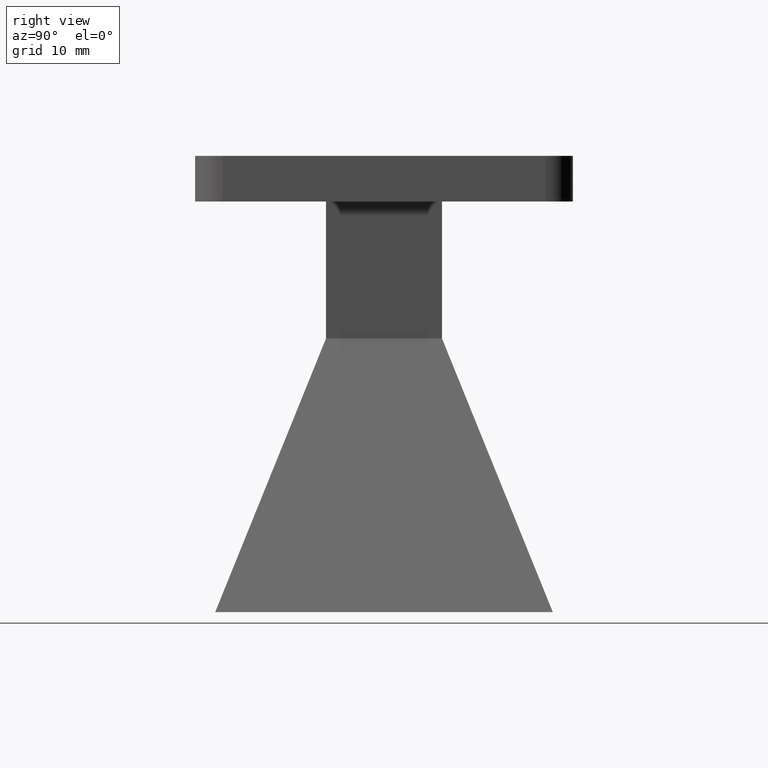
[diagram: clean part render]
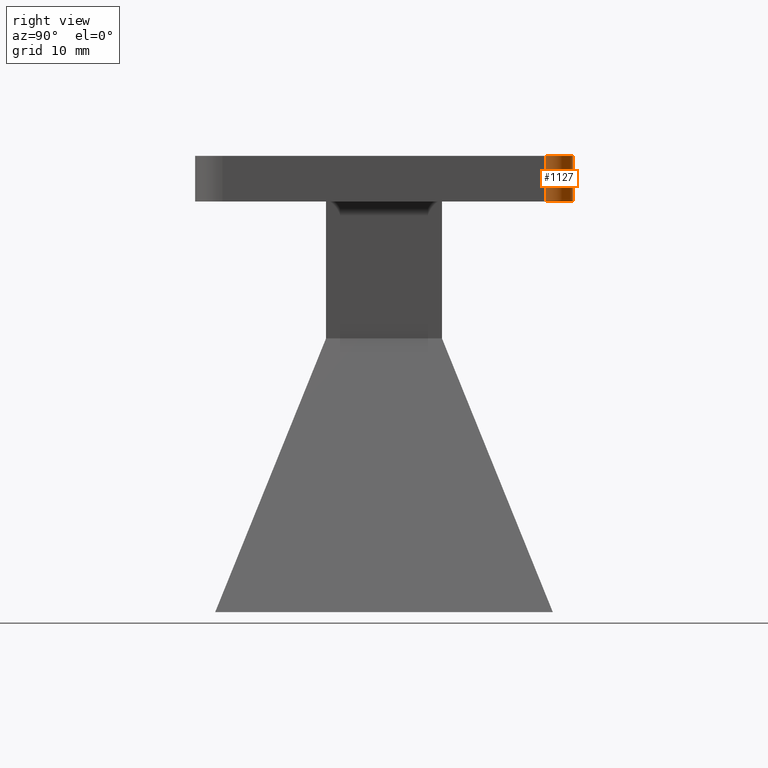
[diagram: same view with one face highlighted and labeled with its STEP entity id]
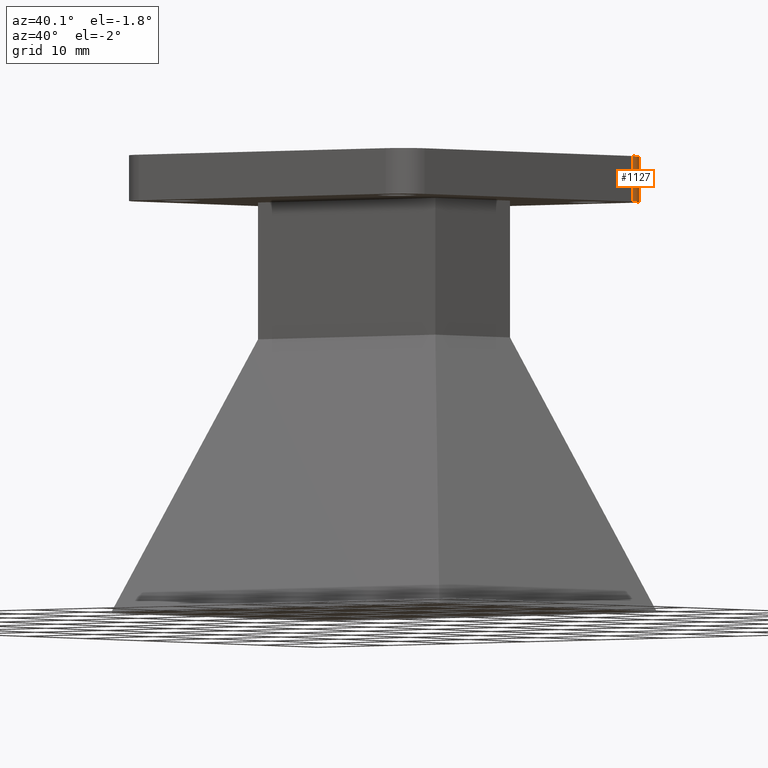
[diagram: same view with one face highlighted and labeled with its STEP entity id]
A machine part, right view. The second image highlights one B-rep face of the part: STEP entity #1127.
A second angle (auxiliary view) of the same face is appended — the face is thin or edge-on in the first view.
In plain terms, the highlighted cylindrical surface (edge-blend (fillet) strip) has radius 3 mm, axis along (0, 0, 1).
Its self-contained STEP definition (entity closure, byte-faithful):
#15 = ORIENTED_EDGE ( 'NONE', *, *, #867, .T. ) ;
#66 = CARTESIAN_POINT ( 'NONE',  ( 0.8150000000000000600, 0.6968897637795274900, 0.0000000000000000000 ) ) ;
#116 = ORIENTED_EDGE ( 'NONE', *, *, #1074, .T. ) ;
#151 = CIRCLE ( 'NONE', #541, 0.1181102362204724100 ) ;
#162 = ORIENTED_EDGE ( 'NONE', *, *, #231, .F. ) ;
#196 = CARTESIAN_POINT ( 'NONE',  ( 0.6968897637795276000, 0.6968897637795274900, 0.0000000000000000000 ) ) ;
#211 = AXIS2_PLACEMENT_3D ( 'NONE', #196, #1115, #564 ) ;
#231 = EDGE_CURVE ( 'NONE', #591, #1101, #1065, .T. ) ;
#367 = VERTEX_POINT ( 'NONE', #414 ) ;
#381 = VERTEX_POINT ( 'NONE', #1032 ) ;
#414 = CARTESIAN_POINT ( 'NONE',  ( 0.8150000000000000600, 0.6968897637795274900, -0.1968503937007874100 ) ) ;
#504 = DIRECTION ( 'NONE',  ( 0.0000000000000000000, 0.0000000000000000000, 1.000000000000000000 ) ) ;
#541 = AXIS2_PLACEMENT_3D ( 'NONE', #565, #821, #652 ) ;
#550 = CYLINDRICAL_SURFACE ( 'NONE', #1155, 0.1181102362204724100 ) ;
#564 = DIRECTION ( 'NONE',  ( -1.000000000000000000, 0.0000000000000000000, 0.0000000000000000000 ) ) ;
#565 = CARTESIAN_POINT ( 'NONE',  ( 0.6968897637795276000, 0.6968897637795274900, -0.1968503937007874100 ) ) ;
#591 = VERTEX_POINT ( 'NONE', #66 ) ;
#652 = DIRECTION ( 'NONE',  ( -1.000000000000000000, 0.0000000000000000000, 0.0000000000000000000 ) ) ;
#661 = CARTESIAN_POINT ( 'NONE',  ( 0.8150000000000000600, 0.6968897637795274900, -0.1968503937007874100 ) ) ;
#662 = VECTOR ( 'NONE', #831, 39.37007874015748100 ) ;
#737 = LINE ( 'NONE', #661, #662 ) ;
#781 = CARTESIAN_POINT ( 'NONE',  ( 0.6968897637795276000, 0.8149999999999999500, -0.1968503937007874100 ) ) ;
#821 = DIRECTION ( 'NONE',  ( 0.0000000000000000000, 0.0000000000000000000, 1.000000000000000000 ) ) ;
#825 = ORIENTED_EDGE ( 'NONE', *, *, #927, .F. ) ;
#831 = DIRECTION ( 'NONE',  ( 0.0000000000000000000, 0.0000000000000000000, 1.000000000000000000 ) ) ;
#867 = EDGE_CURVE ( 'NONE', #367, #381, #151, .T. ) ;
#881 = CARTESIAN_POINT ( 'NONE',  ( 0.6968897637795276000, 0.6968897637795274900, -0.1968503937007874100 ) ) ;
#927 = EDGE_CURVE ( 'NONE', #367, #591, #737, .T. ) ;
#948 = CARTESIAN_POINT ( 'NONE',  ( 0.6968897637795276000, 0.8149999999999999500, 0.0000000000000000000 ) ) ;
#981 = FACE_OUTER_BOUND ( 'NONE', #1113, .T. ) ;
#1032 = CARTESIAN_POINT ( 'NONE',  ( 0.6968897637795276000, 0.8149999999999999500, -0.1968503937007874100 ) ) ;
#1048 = LINE ( 'NONE', #781, #1062 ) ;
#1054 = DIRECTION ( 'NONE',  ( 1.000000000000000000, 0.0000000000000000000, 0.0000000000000000000 ) ) ;
#1062 = VECTOR ( 'NONE', #504, 39.37007874015748100 ) ;
#1065 = CIRCLE ( 'NONE', #211, 0.1181102362204724100 ) ;
#1074 = EDGE_CURVE ( 'NONE', #381, #1101, #1048, .T. ) ;
#1101 = VERTEX_POINT ( 'NONE', #948 ) ;
#1113 = EDGE_LOOP ( 'NONE', ( #162, #825, #15, #116 ) ) ;
#1115 = DIRECTION ( 'NONE',  ( 0.0000000000000000000, 0.0000000000000000000, 1.000000000000000000 ) ) ;
#1127 = ADVANCED_FACE ( 'NONE', ( #981 ), #550, .T. ) ;
#1155 = AXIS2_PLACEMENT_3D ( 'NONE', #881, #1159, #1054 ) ;
#1159 = DIRECTION ( 'NONE',  ( 0.0000000000000000000, 0.0000000000000000000, 1.000000000000000000 ) ) ;